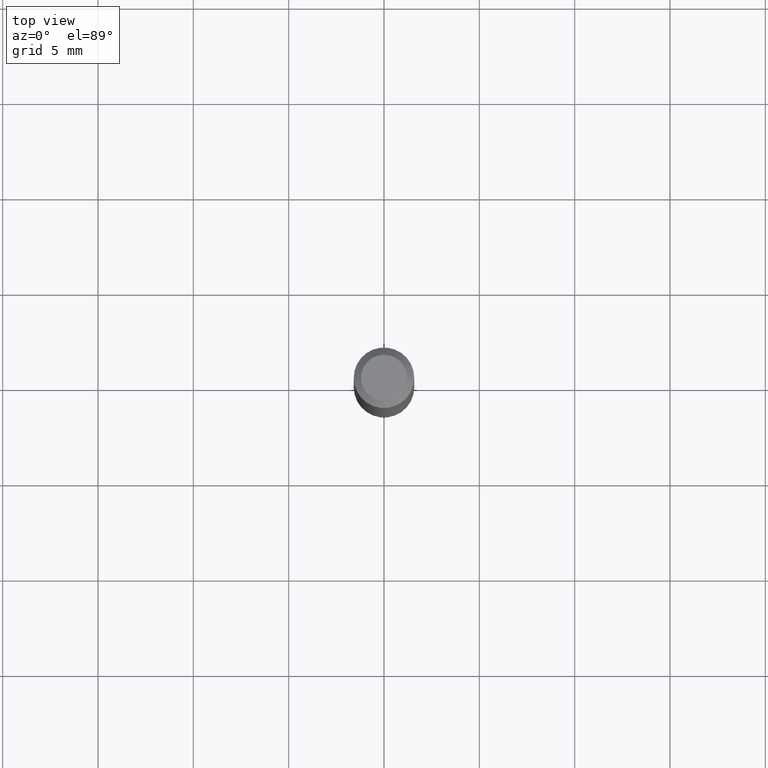
[diagram: clean part render]
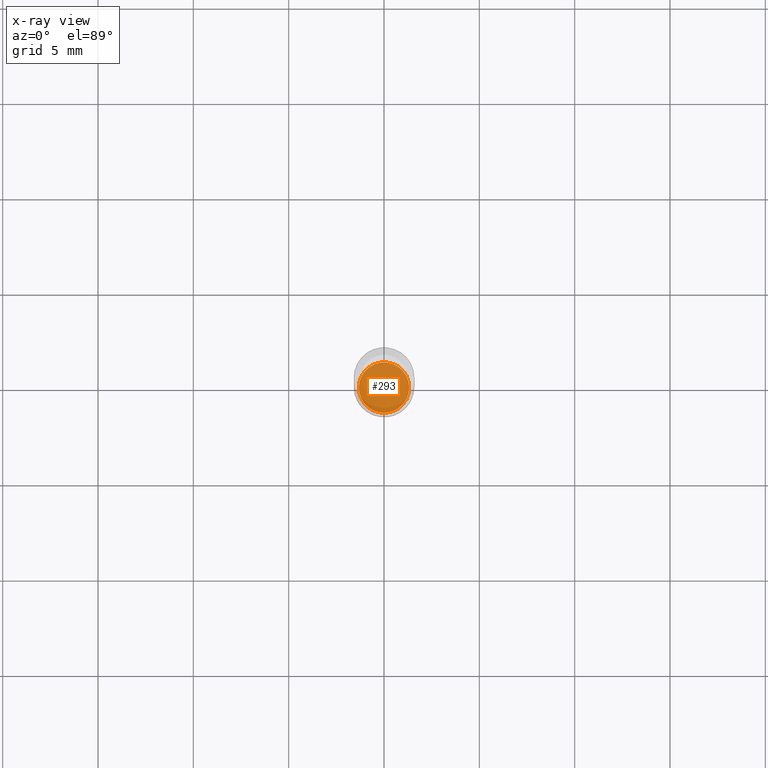
[diagram: x-ray — body ghosted, one internal face saturated and labeled with its STEP entity id]
A machine part, top view, then the same camera in x-ray: the body is ghosted and one INTERNAL B-rep face — a face not visible from any outside direction — is saturated and labeled: STEP entity #293.
In plain terms, the highlighted planar face has unit normal (-0, 0, 1).
Its self-contained STEP definition (entity closure, byte-faithful):
#11 = AXIS2_PLACEMENT_3D ( 'NONE', #239, #18, #179 ) ;
#18 = DIRECTION ( 'NONE',  ( -2.438088387897960049E-29, 3.491481338843145188E-15, 1.000000000000000000 ) ) ;
#29 = EDGE_CURVE ( 'NONE', #501, #105, #119, .T. ) ;
#75 = ORIENTED_EDGE ( 'NONE', *, *, #29, .F. ) ;
#95 = AXIS2_PLACEMENT_3D ( 'NONE', #479, #219, #426 ) ;
#105 = VERTEX_POINT ( 'NONE', #180 ) ;
#110 = AXIS2_PLACEMENT_3D ( 'NONE', #387, #272, #505 ) ;
#119 = CIRCLE ( 'NONE', #95, 0.05200000000000008782 ) ;
#179 = DIRECTION ( 'NONE',  ( 1.000000000000000000, -6.982962677686265922E-15, 4.876176775795935793E-29 ) ) ;
#180 = CARTESIAN_POINT ( 'NONE',  ( 0.05200000000000008782, -4.500519445768814483E-15, -1.185000000000000053 ) ) ;
#189 = FACE_OUTER_BOUND ( 'NONE', #238, .T. ) ;
#203 = CARTESIAN_POINT ( 'NONE',  ( -0.05200000000000008782, -3.765273936759763915E-15, -1.185000000000000053 ) ) ;
#219 = DIRECTION ( 'NONE',  ( -2.445468806185136597E-29, 3.491481338843145583E-15, 1.000000000000000000 ) ) ;
#238 = EDGE_LOOP ( 'NONE', ( #374, #75 ) ) ;
#239 = CARTESIAN_POINT ( 'NONE',  ( 2.897880535329386822E-29, -4.137405386529127541E-15, -1.185000000000000053 ) ) ;
#272 = DIRECTION ( 'NONE',  ( -2.445468806185136597E-29, 3.491481338843145583E-15, 1.000000000000000000 ) ) ;
#293 = ADVANCED_FACE ( 'NONE', ( #189 ), #513, .F. ) ;
#354 = EDGE_CURVE ( 'NONE', #105, #501, #383, .T. ) ;
#374 = ORIENTED_EDGE ( 'NONE', *, *, #354, .F. ) ;
#383 = CIRCLE ( 'NONE', #110, 0.05200000000000008782 ) ;
#387 = CARTESIAN_POINT ( 'NONE',  ( 2.897880535329386822E-29, -4.137405386529127541E-15, -1.185000000000000053 ) ) ;
#426 = DIRECTION ( 'NONE',  ( 1.000000000000000000, -6.982962677686274599E-15, 0.000000000000000000 ) ) ;
#479 = CARTESIAN_POINT ( 'NONE',  ( 2.897880535329386822E-29, -4.137405386529127541E-15, -1.185000000000000053 ) ) ;
#501 = VERTEX_POINT ( 'NONE', #203 ) ;
#505 = DIRECTION ( 'NONE',  ( 1.000000000000000000, -6.982962677686274599E-15, 0.000000000000000000 ) ) ;
#513 = PLANE ( 'NONE',  #11 ) ;